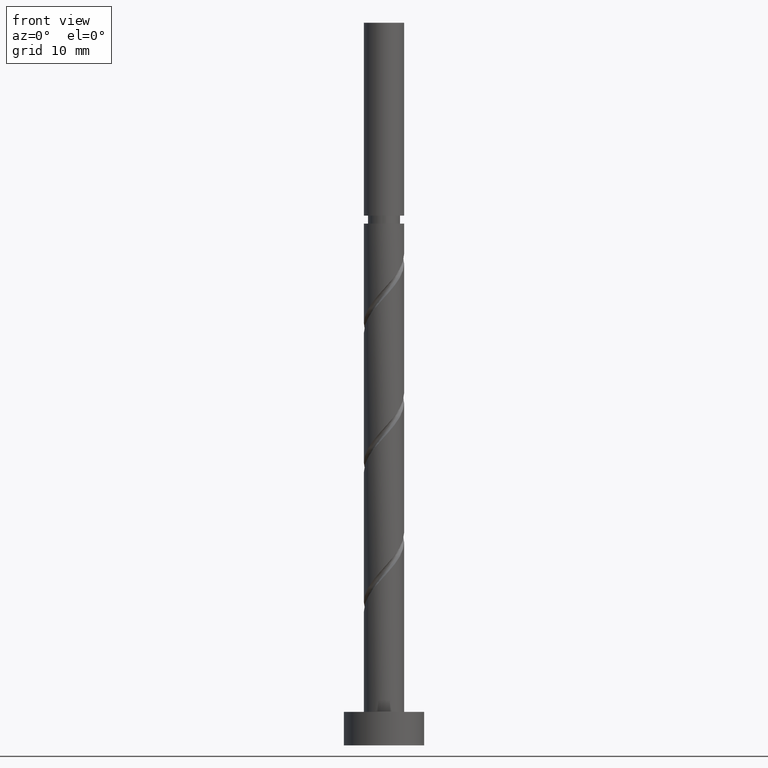
[diagram: clean part render]
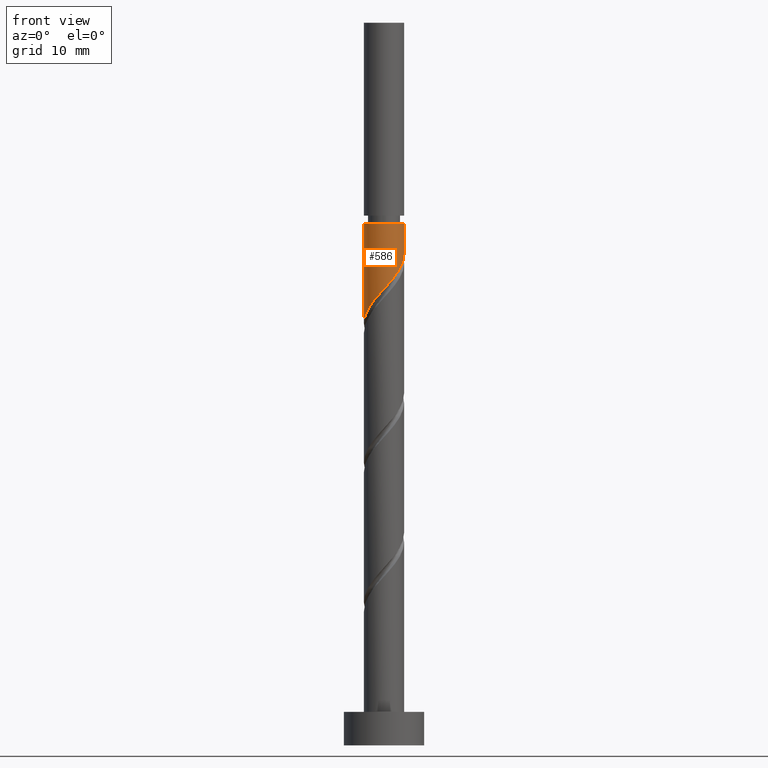
[diagram: same view with one face highlighted and labeled with its STEP entity id]
A machine part, front view. The second image highlights one B-rep face of the part: STEP entity #586.
In plain terms, the highlighted cylindrical surface (edge-blend (fillet) strip) has radius 3 mm, axis along (-0, -0, -1).
Its self-contained STEP definition (entity closure, byte-faithful):
#9 = CARTESIAN_POINT ( 'NONE',  ( 2.377805000122526824, -1.889924352937060847, 71.20172995603918764 ) ) ;
#35 = CARTESIAN_POINT ( 'NONE',  ( -2.211065689225169439, -2.027606598413811856, 65.47256328937250203 ) ) ;
#49 = EDGE_CURVE ( 'NONE', #202, #1086, #281, .T. ) ;
#62 = AXIS2_PLACEMENT_3D ( 'NONE', #481, #1469, #240 ) ;
#85 = CIRCLE ( 'NONE', #62, 3.000000000000003553 ) ;
#123 = ORIENTED_EDGE ( 'NONE', *, *, #1527, .F. ) ;
#133 = CARTESIAN_POINT ( 'NONE',  ( 2.027606598413811856, -2.211065689225169439, 70.68089662270584483 ) ) ;
#163 = FACE_OUTER_BOUND ( 'NONE', #395, .T. ) ;
#171 = CARTESIAN_POINT ( 'NONE',  ( -3.000000000000000444, 0.000000000000000000, 108.0000000000000000 ) ) ;
#185 = DIRECTION ( 'NONE',  ( -0.000000000000000000, -0.000000000000000000, -1.000000000000000000 ) ) ;
#202 = VERTEX_POINT ( 'NONE', #1417 ) ;
#240 = DIRECTION ( 'NONE',  ( -1.000000000000000000, 0.000000000000000000, 0.000000000000000000 ) ) ;
#246 = CARTESIAN_POINT ( 'NONE',  ( -0.1313422077098356233, -3.034554317013646862, 68.07672995603918764 ) ) ;
#281 = LINE ( 'NONE', #171, #1074 ) ;
#286 = DIRECTION ( 'NONE',  ( -1.000000000000000000, 0.000000000000000000, 0.000000000000000000 ) ) ;
#302 = CARTESIAN_POINT ( 'NONE',  ( -2.926619631508482477, -0.8128149918040481481, 63.91006328937248782 ) ) ;
#342 = CARTESIAN_POINT ( 'NONE',  ( 3.000000000000000888, -0.3015113445777607981, 73.09472782210160346 ) ) ;
#370 = DIRECTION ( 'NONE',  ( -0.000000000000000000, -0.000000000000000000, -1.000000000000000000 ) ) ;
#392 = CARTESIAN_POINT ( 'NONE',  ( -1.889924352937060847, -2.377805000122526824, 65.99339662270584483 ) ) ;
#395 = EDGE_LOOP ( 'NONE', ( #978, #1420, #878, #123 ) ) ;
#444 = EDGE_CURVE ( 'NONE', #1363, #623, #632, .T. ) ;
#481 = CARTESIAN_POINT ( 'NONE',  ( 0.000000000000000000, 0.000000000000000000, 77.97256328937248782 ) ) ;
#503 = CARTESIAN_POINT ( 'NONE',  ( -0.5969924622639722900, -2.940000000000000835, 67.55589662270581641 ) ) ;
#505 = CARTESIAN_POINT ( 'NONE',  ( 3.000000000000000444, 3.673940397442060361E-16, 108.0000000000000000 ) ) ;
#507 = VECTOR ( 'NONE', #370, 1000.000000000000000 ) ;
#512 = CARTESIAN_POINT ( 'NONE',  ( -1.062642716818109179, -2.845445682986354363, 67.03506328937250203 ) ) ;
#575 = CARTESIAN_POINT ( 'NONE',  ( -2.532207025513277809, -1.677408196705098442, 64.95172995603917343 ) ) ;
#586 = ADVANCED_FACE ( 'NONE', ( #163 ), #654, .T. ) ;
#620 = CARTESIAN_POINT ( 'NONE',  ( 0.8128149918040478150, -2.926619631508482477, 69.11839662270584483 ) ) ;
#623 = VERTEX_POINT ( 'NONE', #780 ) ;
#632 = LINE ( 'NONE', #505, #507 ) ;
#654 = CYLINDRICAL_SURFACE ( 'NONE', #796, 3.000000000000000444 ) ;
#714 = CARTESIAN_POINT ( 'NONE',  ( 2.611625341554439483, -1.476283534877585346, 71.72256328937247360 ) ) ;
#780 = CARTESIAN_POINT ( 'NONE',  ( 3.000000000000000000, 1.994082670166389465E-15, 73.42903239750944522 ) ) ;
#796 = AXIS2_PLACEMENT_3D ( 'NONE', #916, #1282, #286 ) ;
#834 = CARTESIAN_POINT ( 'NONE',  ( 2.940000000000000835, -0.5969924622639726230, 72.76422995603915922 ) ) ;
#840 = EDGE_CURVE ( 'NONE', #1363, #202, #85, .T. ) ;
#864 = CARTESIAN_POINT ( 'NONE',  ( 0.3407363920471058738, -2.980586974261063116, 68.59756328937250203 ) ) ;
#878 = ORIENTED_EDGE ( 'NONE', *, *, #49, .T. ) ;
#916 = CARTESIAN_POINT ( 'NONE',  ( 0.000000000000000000, 0.000000000000000000, 108.0000000000000000 ) ) ;
#966 = CARTESIAN_POINT ( 'NONE',  ( 2.999999999999999556, 1.994082670166389860E-15, 73.42903239750945943 ) ) ;
#978 = ORIENTED_EDGE ( 'NONE', *, *, #444, .F. ) ;
#981 = CARTESIAN_POINT ( 'NONE',  ( 1.245111594254573184, -2.729413328510879033, 69.63922995603914501 ) ) ;
#1004 = CARTESIAN_POINT ( 'NONE',  ( -1.476283534877585124, -2.611625341554439483, 66.51422995603915922 ) ) ;
#1034 = CARTESIAN_POINT ( 'NONE',  ( -2.729413328510879033, -1.245111594254573184, 64.43089662270581641 ) ) ;
#1057 = CARTESIAN_POINT ( 'NONE',  ( -3.000000000000000888, -0.1709212123392955807, 63.20187682005003182 ) ) ;
#1074 = VECTOR ( 'NONE', #185, 1000.000000000000000 ) ;
#1078 = CARTESIAN_POINT ( 'NONE',  ( -3.000000000000000000, 1.829158539551123741E-15, 63.01236573084274539 ) ) ;
#1086 = VERTEX_POINT ( 'NONE', #1078 ) ;
#1099 = CARTESIAN_POINT ( 'NONE',  ( 1.677408196705098442, -2.532207025513278253, 70.16006328937250203 ) ) ;
#1261 =( BOUNDED_CURVE ( )  B_SPLINE_CURVE ( 2, ( #966, #342, #834, #1327, #714, #9, #133, #1099, #981, #620, #864, #246, #503, #512, #1004, #392, #35, #575, #1034, #302, #1544, #1057, #1458 ),
 .UNSPECIFIED., .F., .T. ) 
 B_SPLINE_CURVE_WITH_KNOTS ( ( 3, 2, 2, 2, 2, 2, 2, 2, 2, 2, 2, 3 ),
 ( 0.3045322023138550827, 0.3125000000000000000, 0.3250000000000000111, 0.3375000000000000222, 0.3499999999999999778, 0.3624999999999999889, 0.3750000000000000000, 0.3875000000000000111, 0.4000000000000000222, 0.4124999999999999778, 0.4249999999999999889, 0.4295322023138552492 ),
 .UNSPECIFIED. ) 
 CURVE ( )  GEOMETRIC_REPRESENTATION_ITEM ( )  RATIONAL_B_SPLINE_CURVE ( ( 0.9039174447099271870, 0.9019565955404564850, 0.9090909090909048418, 0.8978984914501209058, 0.9090909090909048418, 0.8978984914501209058, 0.9090909090909048418, 0.8978984914501209058, 0.9090909090909048418, 0.8978984914501209058, 0.9090909090909048418, 0.8978984914501209058, 0.9090909090909048418, 0.8978984914501209058, 0.9090909090909048418, 0.8978984914501209058, 0.9090909090909048418, 0.8978984914501209058, 0.9090909090909048418, 0.8978984914501209058, 0.9090909090909048418, 0.9050328050005692626, 0.9039174447099271870 ) ) 
 REPRESENTATION_ITEM ( '' )  );
#1282 = DIRECTION ( 'NONE',  ( -0.000000000000000000, -0.000000000000000000, -1.000000000000000000 ) ) ;
#1327 = CARTESIAN_POINT ( 'NONE',  ( 2.845445682986354363, -1.062642716818109401, 72.24339662270584483 ) ) ;
#1363 = VERTEX_POINT ( 'NONE', #1370 ) ;
#1370 = CARTESIAN_POINT ( 'NONE',  ( 3.000000000000003997, 3.673940397442063812E-16, 77.97256328937248782 ) ) ;
#1417 = CARTESIAN_POINT ( 'NONE',  ( -3.000000000000003997, 0.000000000000000000, 77.97256328937248782 ) ) ;
#1420 = ORIENTED_EDGE ( 'NONE', *, *, #840, .T. ) ;
#1458 = CARTESIAN_POINT ( 'NONE',  ( -2.999999999999999556, 1.829158539551123741E-15, 63.01236573084274539 ) ) ;
#1469 = DIRECTION ( 'NONE',  ( -0.000000000000000000, -0.000000000000000000, -1.000000000000000000 ) ) ;
#1527 = EDGE_CURVE ( 'NONE', #623, #1086, #1261, .T. ) ;
#1544 = CARTESIAN_POINT ( 'NONE',  ( -2.980586974261063116, -0.3407363920471060958, 63.38922995603915922 ) ) ;